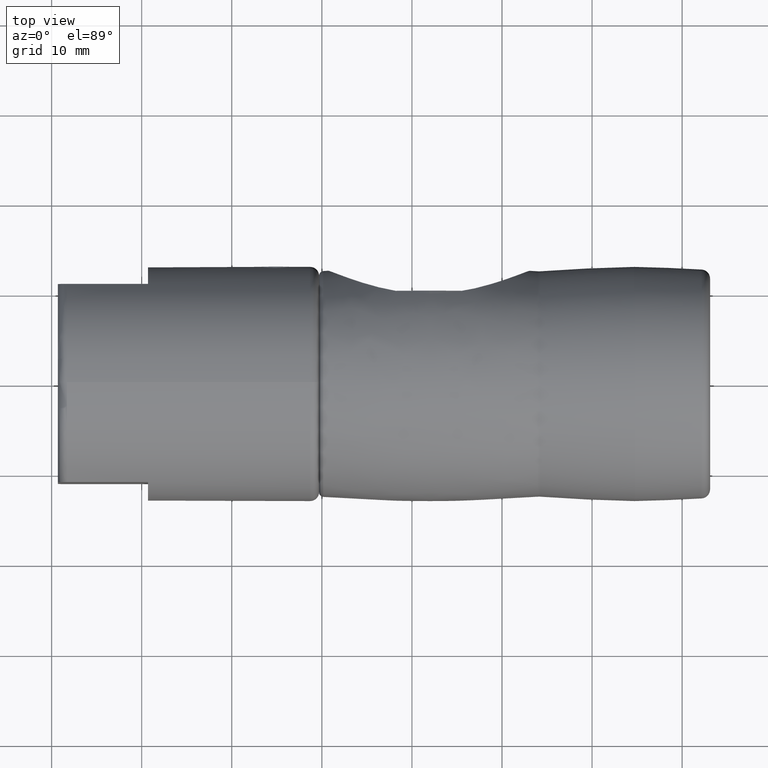
[diagram: clean part render]
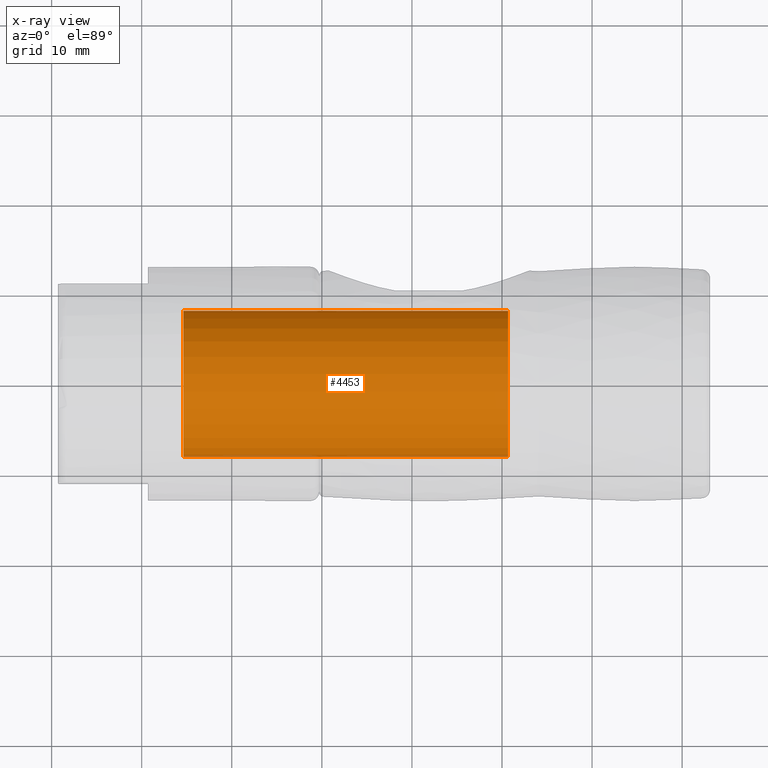
[diagram: x-ray — body ghosted, one internal face saturated and labeled with its STEP entity id]
A machine part, top view, then the same camera in x-ray: the body is ghosted and one INTERNAL B-rep face — a face not visible from any outside direction — is saturated and labeled: STEP entity #4453.
In plain terms, the highlighted cylindrical surface (bore or boss wall) has radius 8.1164 mm, axis along (1, 0, 0).
Its self-contained STEP definition (entity closure, byte-faithful):
#553=LINE('',#11319,#739);
#739=VECTOR('',#6020,8.11638292403406);
#864=CYLINDRICAL_SURFACE('',#4982,8.11638292403406);
#1081=FACE_OUTER_BOUND('',#1372,.T.);
#1372=EDGE_LOOP('',(#3768,#3769,#3770,#3771,#3772,#3773));
#1701=CIRCLE('',#4980,8.11638292403406);
#1702=CIRCLE('',#4981,8.11638292403406);
#1703=CIRCLE('',#4983,8.11638292403406);
#1704=CIRCLE('',#4984,8.11638292403406);
#2090=VERTEX_POINT('',#11310);
#2091=VERTEX_POINT('',#11311);
#2092=VERTEX_POINT('',#11315);
#2093=VERTEX_POINT('',#11316);
#2709=EDGE_CURVE('',#2090,#2091,#1701,.T.);
#2710=EDGE_CURVE('',#2091,#2090,#1702,.T.);
#2711=EDGE_CURVE('',#2092,#2093,#1703,.T.);
#2712=EDGE_CURVE('',#2093,#2092,#1704,.T.);
#2713=EDGE_CURVE('',#2093,#2091,#553,.T.);
#3768=ORIENTED_EDGE('',*,*,#2711,.F.);
#3769=ORIENTED_EDGE('',*,*,#2712,.F.);
#3770=ORIENTED_EDGE('',*,*,#2713,.T.);
#3771=ORIENTED_EDGE('',*,*,#2710,.T.);
#3772=ORIENTED_EDGE('',*,*,#2709,.T.);
#3773=ORIENTED_EDGE('',*,*,#2713,.F.);
#4453=ADVANCED_FACE('',(#1081),#864,.T.);
#4980=AXIS2_PLACEMENT_3D('',#11312,#6010,#6011);
#4981=AXIS2_PLACEMENT_3D('',#11313,#6012,#6013);
#4982=AXIS2_PLACEMENT_3D('',#11314,#6014,#6015);
#4983=AXIS2_PLACEMENT_3D('',#11317,#6016,#6017);
#4984=AXIS2_PLACEMENT_3D('',#11318,#6018,#6019);
#6010=DIRECTION('center_axis',(1.,0.,0.));
#6011=DIRECTION('ref_axis',(0.,0.,-1.));
#6012=DIRECTION('center_axis',(1.,0.,0.));
#6013=DIRECTION('ref_axis',(0.,0.,-1.));
#6014=DIRECTION('center_axis',(1.,0.,0.));
#6015=DIRECTION('ref_axis',(0.,1.,0.));
#6016=DIRECTION('center_axis',(1.,0.,0.));
#6017=DIRECTION('ref_axis',(0.,0.,-1.));
#6018=DIRECTION('center_axis',(1.,0.,0.));
#6019=DIRECTION('ref_axis',(0.,0.,-1.));
#6020=DIRECTION('',(-1.,0.,0.));
#11310=CARTESIAN_POINT('',(-5.37793690164374,8.11638292403406,0.));
#11311=CARTESIAN_POINT('',(-5.37793690164374,-8.11638292403406,-9.93970236857255E-16));
#11312=CARTESIAN_POINT('Origin',(-5.37793690164374,0.,0.));
#11313=CARTESIAN_POINT('Origin',(-5.37793690164374,0.,0.));
#11314=CARTESIAN_POINT('Origin',(12.652732036342,0.,0.));
#11315=CARTESIAN_POINT('',(30.6834009743277,8.11638292403406,0.));
#11316=CARTESIAN_POINT('',(30.6834009743277,-8.11638292403406,-9.93970236857255E-16));
#11317=CARTESIAN_POINT('Origin',(30.6834009743277,0.,0.));
#11318=CARTESIAN_POINT('Origin',(30.6834009743277,0.,0.));
#11319=CARTESIAN_POINT('',(12.652732036342,-8.11638292403406,-9.93970236857255E-16));